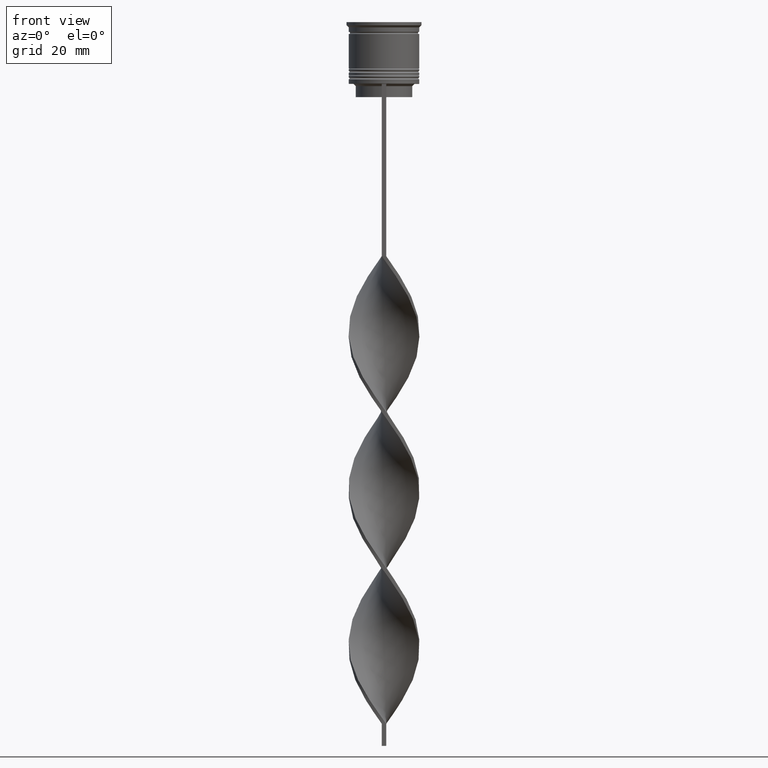
[diagram: clean part render]
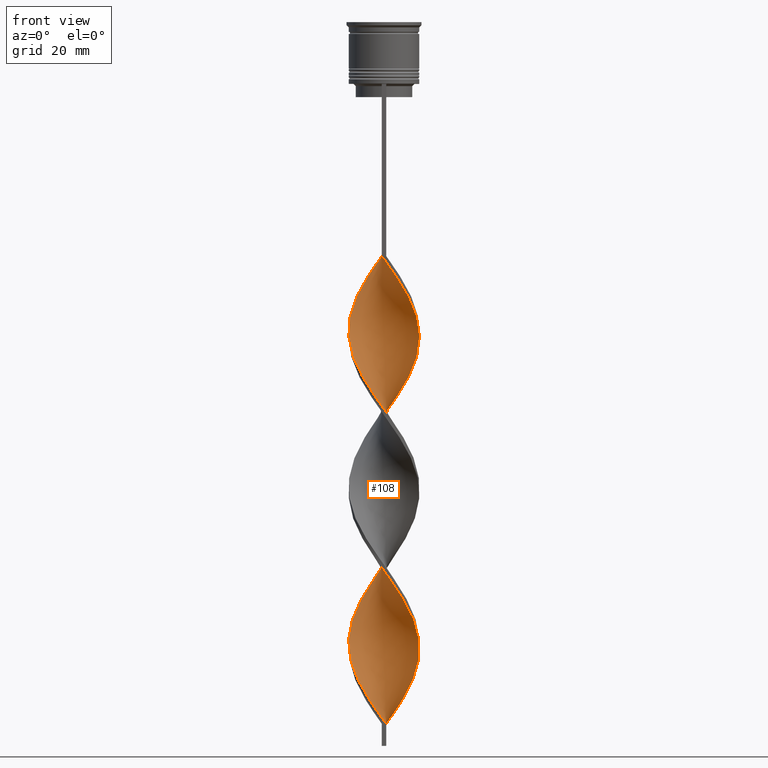
[diagram: same view with one face highlighted and labeled with its STEP entity id]
A machine part, front view. The second image highlights one B-rep face of the part: STEP entity #108.
In plain terms, the highlighted face is a freeform B-spline surface patch.
Its self-contained STEP definition (entity closure, byte-faithful):
#69 = CARTESIAN_POINT ( 'NONE',  ( 3.710665873427705375, 7.104995339602909077, -154.2888888888888914 ) ) ;
#93 = CARTESIAN_POINT ( 'NONE',  ( -7.178203230275506108, 3.566987298107779925, -64.77777777777778567 ) ) ;
#108 = ADVANCED_FACE ( 'NONE', ( #2754 ), #2329, .T. ) ;
#109 = CARTESIAN_POINT ( 'NONE',  ( -4.297773521152312703, 6.766028581145818954, -95.40000000000000568 ) ) ;
#111 = CARTESIAN_POINT ( 'NONE',  ( 7.762960627548698866, -1.996607696852002345, -102.4666666666666686 ) ) ;
#114 = CARTESIAN_POINT ( 'NONE',  ( 7.763755626116591202, -2.164223167868972286, -68.31111111111111711 ) ) ;
#126 = CARTESIAN_POINT ( 'NONE',  ( -6.212274820320100588, 5.134920145359100019, -98.93333333333332291 ) ) ;
#130 = CARTESIAN_POINT ( 'NONE',  ( 6.279723906998587069, 4.981472438132168001, -78.91111111111111143 ) ) ;
#144 = CARTESIAN_POINT ( 'NONE',  ( -2.963900771692546510, -7.495002038555971247, -120.1333333333333400 ) ) ;
#172 = CARTESIAN_POINT ( 'NONE',  ( 8.008439394580010529, -0.3389667584570969505, -104.8222222222222229 ) ) ;
#174 = CARTESIAN_POINT ( 'NONE',  ( 0.3408338821254121020, -8.052552117632842510, -54.17777777777777715 ) ) ;
#179 = CARTESIAN_POINT ( 'NONE',  ( 6.279723906998587069, 4.981472438132168001, -149.5777777777777828 ) ) ;
#184 = CARTESIAN_POINT ( 'NONE',  ( 7.763755626116591202, -2.164223167868972286, -138.9777777777777885 ) ) ;
#207 = CARTESIAN_POINT ( 'NONE',  ( 6.803297758105513182, 4.321446859207497937, -148.4000000000000057 ) ) ;
#210 = CARTESIAN_POINT ( 'NONE',  ( -3.710665873427700490, 7.104995339602903748, -57.71111111111110858 ) ) ;
#212 = VERTEX_POINT ( 'NONE', #2910 ) ;
#216 = CARTESIAN_POINT ( 'NONE',  ( -6.803297758105507853, 4.321446859207494384, -134.2666666666666231 ) ) ;
#224 = CARTESIAN_POINT ( 'NONE',  ( 2.007605570224933356, -7.805721184925815237, -127.2000000000000028 ) ) ;
#227 = CARTESIAN_POINT ( 'NONE',  ( -8.008439394580010529, 0.3389667584570925096, -69.48888888888889426 ) ) ;
#233 = CARTESIAN_POINT ( 'NONE',  ( 2.963900771692545177, 7.495002038555971247, -84.79999999999998295 ) ) ;
#240 = CARTESIAN_POINT ( 'NONE',  ( 7.144131640230924063, -3.731105258425344129, -136.6222222222222342 ) ) ;
#243 = CARTESIAN_POINT ( 'NONE',  ( 0.4999999999999989453, -7.999999999999996447, -88.33333333333332860 ) ) ;
#251 = CARTESIAN_POINT ( 'NONE',  ( -5.756150055891653849, 5.641498017056839842, -131.9111111111111256 ) ) ;
#260 = CARTESIAN_POINT ( 'NONE',  ( -4.457430975162866460, -6.714988640649845131, -117.7777777777777857 ) ) ;
#266 = CARTESIAN_POINT ( 'NONE',  ( -7.553108702445505251, 2.812527737008064577, -136.6222222222222342 ) ) ;
#274 = CARTESIAN_POINT ( 'NONE',  ( 0.4999999999999989453, -7.999999999999996447, -159.0000000000000000 ) ) ;
#277 = VERTEX_POINT ( 'NONE', #2894 ) ;
#311 = CARTESIAN_POINT ( 'NONE',  ( 0.5000000000000008882, 8.000000000000003553, -159.0000000000000000 ) ) ;
#320 = CARTESIAN_POINT ( 'NONE',  ( -7.903910931312363886, 1.333488653825370962, -104.8222222222222229 ) ) ;
#325 = CARTESIAN_POINT ( 'NONE',  ( 7.178203230275513214, 3.566987298107780813, -76.55555555555555713 ) ) ;
#340 = CARTESIAN_POINT ( 'NONE',  ( -7.178203230275514990, -3.566987298107776816, -111.8888888888888999 ) ) ;
#353 = CARTESIAN_POINT ( 'NONE',  ( 1.340833882125414211, 7.947447882367163707, -157.8222222222221944 ) ) ;
#354 = CARTESIAN_POINT ( 'NONE',  ( -4.297773521152310039, -6.766028581145813625, -81.26666666666666572 ) ) ;
#367 =( BOUNDED_CURVE ( )  B_SPLINE_CURVE ( 2, ( #1569, #3570, #2174, #675, #3607, #2122, #397, #1818, #726, #697, #2692, #2979, #1552, #114, #379, #1265, #2426, #3586, #3326, #983, #1865, #2727, #130, #2442, #1003, #1658, #2271, #2861, #3132, #3711, #1083, #1387, #462, #1355, #1916, #2547, #751, #1106, #1413, #2495, #3673, #478, #2214, #2824, #3434, #766, #516, #502, #824, #3690, #1985, #1034, #2191, #3380, #3147, #260, #1949, #1969, #1674, #2841, #1693, #531, #3636, #224, #1370, #3658, #3365, #3075, #1620, #2784, #1637, #240, #1068, #184, #1332, #3416, #1932, #1053, #3091, #2527, #2804, #207, #2513, #2229, #3397, #783, #3110, #2247, #806, #353, #311 ),
 .UNSPECIFIED., .F., .T. ) 
 B_SPLINE_CURVE_WITH_KNOTS ( ( 3, 2, 2, 2, 2, 2, 2, 2, 2, 2, 2, 2, 2, 2, 2, 2, 2, 2, 2, 2, 2, 2, 2, 2, 2, 2, 2, 2, 2, 2, 2, 2, 2, 2, 2, 2, 2, 2, 2, 2, 2, 2, 2, 2, 2, 3 ),
 ( 0.000000000000000000, 0.01666666666666666644, 0.03333333333333333287, 0.05000000000000000971, 0.06666666666666666574, 0.08333333333333332871, 0.1000000000000000194, 0.1166666666666666546, 0.1333333333333333315, 0.1499999999999999944, 0.1666666666666666574, 0.1833333333333333204, 0.2000000000000000389, 0.2166666666666666741, 0.2333333333333333093, 0.2500000000000000000, 0.2666666666666666630, 0.2833333333333333259, 0.2999999999999999889, 0.3166666666666666519, 0.3333333333333333148, 0.3499999999999999223, 0.3666666666666666408, 0.3833333333333333592, 0.4000000000000000777, 0.4166666666666666852, 0.4333333333333333481, 0.4500000000000000111, 0.4666666666666666186, 0.4833333333333333370, 0.5000000000000000000, 0.5166666666666667185, 0.5333333333333333259, 0.5500000000000000444, 0.5666666666666666519, 0.5833333333333333703, 0.5999999999999999778, 0.6166666666666666963, 0.6333333333333333037, 0.6500000000000000222, 0.6666666666666666297, 0.6833333333333332371, 0.6999999999999998446, 0.7166666666666666741, 0.7333333333333332815, 0.7500000000000000000 ),
 .UNSPECIFIED. ) 
 CURVE ( )  GEOMETRIC_REPRESENTATION_ITEM ( )  RATIONAL_B_SPLINE_CURVE ( ( 1.000000000000000000, 0.9945218953682732899, 1.000000000000000000, 0.9945218953682732899, 1.000000000000000000, 0.9945218953682732899, 1.000000000000000000, 0.9945218953682732899, 1.000000000000000000, 0.9945218953682732899, 1.000000000000000000, 0.9945218953682732899, 1.000000000000000000, 0.9945218953682732899, 1.000000000000000000, 0.9945218953682732899, 1.000000000000000000, 0.9945218953682732899, 1.000000000000000000, 0.9945218953682732899, 1.000000000000000000, 0.9945218953682732899, 1.000000000000000000, 0.9945218953682732899, 1.000000000000000000, 0.9945218953682732899, 1.000000000000000000, 0.9945218953682732899, 1.000000000000000000, 0.9945218953682732899, 1.000000000000000000, 0.9945218953682732899, 1.000000000000000000, 0.9945218953682732899, 1.000000000000000000, 0.9945218953682732899, 1.000000000000000000, 0.9945218953682732899, 1.000000000000000000, 0.9945218953682732899, 1.000000000000000000, 0.9945218953682732899, 1.000000000000000000, 0.9945218953682732899, 1.000000000000000000, 0.9945218953682732899, 1.000000000000000000, 0.9945218953682732899, 1.000000000000000000, 0.9945218953682732899, 1.000000000000000000, 0.9945218953682732899, 1.000000000000000000, 0.9945218953682732899, 1.000000000000000000, 0.9945218953682732899, 1.000000000000000000, 0.9945218953682732899, 1.000000000000000000, 0.9945218953682732899, 1.000000000000000000, 0.9945218953682732899, 1.000000000000000000, 0.9945218953682732899, 1.000000000000000000, 0.9945218953682732899, 1.000000000000000000, 0.9945218953682732899, 1.000000000000000000, 0.9945218953682732899, 1.000000000000000000, 0.9945218953682732899, 1.000000000000000000, 0.9945218953682732899, 1.000000000000000000, 0.9945218953682732899, 1.000000000000000000, 0.9945218953682732899, 1.000000000000000000, 0.9945218953682732899, 1.000000000000000000, 0.9945218953682732899, 1.000000000000000000, 0.9945218953682732899, 1.000000000000000000, 0.9945218953682732899, 1.000000000000000000, 0.9945218953682732899, 1.000000000000000000, 0.9945218953682732899, 1.000000000000000000 ) ) 
 REPRESENTATION_ITEM ( '' )  );
#375 = B_SPLINE_CURVE_WITH_KNOTS ( 'NONE', 3,
 ( #1350, #497, #3652, #1064 ),
 .UNSPECIFIED., .F., .F.,
 ( 4, 4 ),
 ( 0.000000000000000000, 1.000000000000000000 ),
 .UNSPECIFIED. ) ;
#376 = CARTESIAN_POINT ( 'NONE',  ( -2.797120415785101954, -7.511731982678703012, -83.62222222222222001 ) ) ;
#379 = CARTESIAN_POINT ( 'NONE',  ( 7.903910931312363886, -1.333488653825366521, -69.48888888888889426 ) ) ;
#387 = VERTEX_POINT ( 'NONE', #2036 ) ;
#394 = CARTESIAN_POINT ( 'NONE',  ( -7.453943633173752303, -2.947664213147154655, -74.20000000000000284 ) ) ;
#397 = CARTESIAN_POINT ( 'NONE',  ( 4.297773521152313592, -6.766028581145818954, -60.06666666666666288 ) ) ;
#449 = CARTESIAN_POINT ( 'NONE',  ( -7.903910931312356780, -1.333488653825362746, -71.84444444444444855 ) ) ;
#454 = CARTESIAN_POINT ( 'NONE',  ( -5.610593300639724390, -5.724617263609558471, -78.91111111111111143 ) ) ;
#462 = CARTESIAN_POINT ( 'NONE',  ( -1.174219726175170564, 7.929136651279328873, -90.68888888888888289 ) ) ;
#464 = CARTESIAN_POINT ( 'NONE',  ( -7.144131640230919622, -3.731105258425339244, -75.37777777777777999 ) ) ;
#472 = CARTESIAN_POINT ( 'NONE',  ( 7.903910931312363886, -1.333488653825366521, -140.1555555555555657 ) ) ;
#478 = CARTESIAN_POINT ( 'NONE',  ( -7.144131640230921398, 3.731105258425349014, -101.2888888888888914 ) ) ;
#482 = CARTESIAN_POINT ( 'NONE',  ( 6.678203230275510549, 4.433012701892212526, -111.8888888888888999 ) ) ;
#484 = CARTESIAN_POINT ( 'NONE',  ( 4.297773521152313592, -6.766028581145818954, -60.06666666666666288 ) ) ;
#494 = CARTESIAN_POINT ( 'NONE',  ( -3.710665873427700490, 7.104995339602903748, -128.3777777777777942 ) ) ;
#497 = CARTESIAN_POINT ( 'NONE',  ( 0.5000000000000002220, 2.666666666666670515, -159.0000000000000000 ) ) ;
#502 = CARTESIAN_POINT ( 'NONE',  ( -7.972812552651899587, -1.180687656695935006, -108.3555555555555543 ) ) ;
#505 = CARTESIAN_POINT ( 'NONE',  ( 3.586635261345272330, 7.217742780431597893, -117.7777777777777857 ) ) ;
#516 = CARTESIAN_POINT ( 'NONE',  ( -8.008439394580017634, -0.3389667584570877357, -107.1777777777777771 ) ) ;
#519 = CARTESIAN_POINT ( 'NONE',  ( -0.4999999999999998890, 7.999999999999996447, -123.6666666666666714 ) ) ;
#525 = CARTESIAN_POINT ( 'NONE',  ( -2.797120415785101954, -7.511731982678703012, -154.2888888888888914 ) ) ;
#531 = CARTESIAN_POINT ( 'NONE',  ( 0.3408338821254121020, -8.052552117632842510, -124.8444444444444343 ) ) ;
#536 = CARTESIAN_POINT ( 'NONE',  ( -0.3408338821254136564, -8.052552117632835404, -157.8222222222221944 ) ) ;
#545 = CARTESIAN_POINT ( 'NONE',  ( -0.3408338821254136564, -8.052552117632835404, -157.8222222222221660 ) ) ;
#562 = CARTESIAN_POINT ( 'NONE',  ( -7.453943633173752303, -2.947664213147154655, -144.8666666666666742 ) ) ;
#571 = CARTESIAN_POINT ( 'NONE',  ( -1.174219726175174561, -7.929136651279319992, -156.6444444444444457 ) ) ;
#582 = CARTESIAN_POINT ( 'NONE',  ( -8.008439394580017634, -0.3389667584570877357, -107.1777777777777771 ) ) ;
#597 = CARTESIAN_POINT ( 'NONE',  ( -2.152367326908976697, 7.721224960461563036, -126.0222222222222257 ) ) ;
#599 = CARTESIAN_POINT ( 'NONE',  ( 7.453943633173757632, -2.947664213147156875, -67.13333333333333997 ) ) ;
#618 = CARTESIAN_POINT ( 'NONE',  ( -6.212274820320096147, -5.134920145359094690, -148.4000000000000057 ) ) ;
#621 = CARTESIAN_POINT ( 'NONE',  ( -7.972812552651898699, -1.180687656695935006, -108.3555555555555543 ) ) ;
#631 = CARTESIAN_POINT ( 'NONE',  ( 6.678203230275512325, -4.433012701892221408, -135.4444444444444571 ) ) ;
#637 = CARTESIAN_POINT ( 'NONE',  ( 6.279723906998579075, -4.981472438132168001, -97.75555555555555998 ) ) ;
#654 = CARTESIAN_POINT ( 'NONE',  ( -2.007605570224932023, -7.805721184925808132, -84.79999999999998295 ) ) ;
#673 = CARTESIAN_POINT ( 'NONE',  ( -0.3408338821254136564, -8.052552117632835404, -87.15555555555553724 ) ) ;
#675 = CARTESIAN_POINT ( 'NONE',  ( 2.007605570224933356, -7.805721184925815237, -56.53333333333332433 ) ) ;
#697 = CARTESIAN_POINT ( 'NONE',  ( 6.212274820320101476, -5.134920145359100019, -63.60000000000000142 ) ) ;
#726 = CARTESIAN_POINT ( 'NONE',  ( 5.610593300639727055, -5.724617263609565576, -62.42222222222221717 ) ) ;
#740 = CARTESIAN_POINT ( 'NONE',  ( -2.152367326908982026, -7.721224960461567477, -121.3111111111111171 ) ) ;
#742 = CARTESIAN_POINT ( 'NONE',  ( 8.044066236508134793, -0.5027541397817586466, -141.3333333333333428 ) ) ;
#747 =( BOUNDED_CURVE ( )  B_SPLINE_CURVE ( 2, ( #3384, #1391, #1086, #827, #210, #2552, #1337, #3078, #3093, #769, #3369, #2516, #1358, #3716, #227, #2499, #449, #3678, #3438, #464, #2847, #2231, #3116, #809, #1038, #755, #2826, #2532, #3693, #2198, #243, #3661, #1110, #2274, #3063, #2218, #1606, #2252, #1320, #2769, #785, #1954, #1623, #2786, #172, #1374, #2808, #1920, #2479, #1934, #482, #3419, #3639, #1642, #1072, #505, #3399, #1972, #1661, #3134, #519, #2586, #597, #3477, #885, #1473, #2061, #3213, #3509, #2570, #869, #266, #903, #2865, #3232, #3528, #845, #2028, #562, #3194, #2012, #618, #2888, #2630, #2605, #1781, #2044, #2945, #3151, #536, #1721 ),
 .UNSPECIFIED., .F., .T. ) 
 B_SPLINE_CURVE_WITH_KNOTS ( ( 3, 2, 2, 2, 2, 2, 2, 2, 2, 2, 2, 2, 2, 2, 2, 2, 2, 2, 2, 2, 2, 2, 2, 2, 2, 2, 2, 2, 2, 2, 2, 2, 2, 2, 2, 2, 2, 2, 2, 2, 2, 2, 2, 2, 2, 3 ),
 ( 0.000000000000000000, 0.01666666666666666644, 0.03333333333333333287, 0.05000000000000000971, 0.06666666666666666574, 0.08333333333333332871, 0.1000000000000000194, 0.1166666666666666546, 0.1333333333333333315, 0.1499999999999999944, 0.1666666666666666574, 0.1833333333333333204, 0.2000000000000000389, 0.2166666666666666741, 0.2333333333333333093, 0.2500000000000000000, 0.2666666666666666630, 0.2833333333333333259, 0.2999999999999999889, 0.3166666666666666519, 0.3333333333333333148, 0.3499999999999999223, 0.3666666666666666408, 0.3833333333333333592, 0.4000000000000000777, 0.4166666666666666852, 0.4333333333333333481, 0.4500000000000000111, 0.4666666666666666186, 0.4833333333333333370, 0.5000000000000000000, 0.5166666666666667185, 0.5333333333333333259, 0.5500000000000000444, 0.5666666666666666519, 0.5833333333333333703, 0.5999999999999999778, 0.6166666666666666963, 0.6333333333333333037, 0.6500000000000000222, 0.6666666666666666297, 0.6833333333333332371, 0.6999999999999998446, 0.7166666666666666741, 0.7333333333333332815, 0.7500000000000000000 ),
 .UNSPECIFIED. ) 
 CURVE ( )  GEOMETRIC_REPRESENTATION_ITEM ( )  RATIONAL_B_SPLINE_CURVE ( ( 1.000000000000000000, 0.9945218953682732899, 1.000000000000000000, 0.9945218953682732899, 1.000000000000000000, 0.9945218953682732899, 1.000000000000000000, 0.9945218953682732899, 1.000000000000000000, 0.9945218953682732899, 1.000000000000000000, 0.9945218953682732899, 1.000000000000000000, 0.9945218953682732899, 1.000000000000000000, 0.9945218953682732899, 1.000000000000000000, 0.9945218953682732899, 1.000000000000000000, 0.9945218953682732899, 1.000000000000000000, 0.9945218953682732899, 1.000000000000000000, 0.9945218953682732899, 1.000000000000000000, 0.9945218953682732899, 1.000000000000000000, 0.9945218953682732899, 1.000000000000000000, 0.9945218953682732899, 1.000000000000000000, 0.9945218953682732899, 1.000000000000000000, 0.9945218953682732899, 1.000000000000000000, 0.9945218953682732899, 1.000000000000000000, 0.9945218953682732899, 1.000000000000000000, 0.9945218953682732899, 1.000000000000000000, 0.9945218953682732899, 1.000000000000000000, 0.9945218953682732899, 1.000000000000000000, 0.9945218953682732899, 1.000000000000000000, 0.9945218953682732899, 1.000000000000000000, 0.9945218953682732899, 1.000000000000000000, 0.9945218953682732899, 1.000000000000000000, 0.9945218953682732899, 1.000000000000000000, 0.9945218953682732899, 1.000000000000000000, 0.9945218953682732899, 1.000000000000000000, 0.9945218953682732899, 1.000000000000000000, 0.9945218953682732899, 1.000000000000000000, 0.9945218953682732899, 1.000000000000000000, 0.9945218953682732899, 1.000000000000000000, 0.9945218953682732899, 1.000000000000000000, 0.9945218953682732899, 1.000000000000000000, 0.9945218953682732899, 1.000000000000000000, 0.9945218953682732899, 1.000000000000000000, 0.9945218953682732899, 1.000000000000000000, 0.9945218953682732899, 1.000000000000000000, 0.9945218953682732899, 1.000000000000000000, 0.9945218953682732899, 1.000000000000000000, 0.9945218953682732899, 1.000000000000000000, 0.9945218953682732899, 1.000000000000000000, 0.9945218953682732899, 1.000000000000000000, 0.9945218953682732899, 1.000000000000000000 ) ) 
 REPRESENTATION_ITEM ( '' )  );
#751 = CARTESIAN_POINT ( 'NONE',  ( -4.297773521152312703, 6.766028581145818954, -95.40000000000000568 ) ) ;
#755 = CARTESIAN_POINT ( 'NONE',  ( -3.586635261345271442, -7.217742780431598781, -82.44444444444444287 ) ) ;
#760 = CARTESIAN_POINT ( 'NONE',  ( -1.340833882125411103, 7.947447882367156602, -54.17777777777777715 ) ) ;
#766 = CARTESIAN_POINT ( 'NONE',  ( -8.044066236508134793, 0.5027541397817596458, -106.0000000000000000 ) ) ;
#769 = CARTESIAN_POINT ( 'NONE',  ( -6.803297758105507853, 4.321446859207494384, -63.60000000000000142 ) ) ;
#771 = CARTESIAN_POINT ( 'NONE',  ( 2.797120415785102399, -7.511731982678711006, -57.71111111111110858 ) ) ;
#777 = CARTESIAN_POINT ( 'NONE',  ( -7.553108702445506140, 2.812527737008064133, -136.6222222222222342 ) ) ;
#783 = CARTESIAN_POINT ( 'NONE',  ( 4.457430975162866460, 6.714988640649846019, -153.1111111111111143 ) ) ;
#785 = CARTESIAN_POINT ( 'NONE',  ( 7.178203230275505220, -3.566987298107782589, -100.1111111111111143 ) ) ;
#796 = CARTESIAN_POINT ( 'NONE',  ( -7.972812552651889817, 1.180687656695941001, -138.9777777777777885 ) ) ;
#806 = CARTESIAN_POINT ( 'NONE',  ( 2.152367326908981138, 7.721224960461567477, -156.6444444444444457 ) ) ;
#809 = CARTESIAN_POINT ( 'NONE',  ( -5.008911780959351745, -6.314314381860024028, -80.08888888888888857 ) ) ;
#815 = CARTESIAN_POINT ( 'NONE',  ( 2.152367326908981138, 7.721224960461567477, -85.97777777777777430 ) ) ;
#824 = CARTESIAN_POINT ( 'NONE',  ( -7.762960627548706860, -1.996607696852001901, -109.5333333333333456 ) ) ;
#827 = CARTESIAN_POINT ( 'NONE',  ( -2.963900771692542069, 7.495002038555965029, -56.53333333333332433 ) ) ;
#834 = CARTESIAN_POINT ( 'NONE',  ( 6.212274820320097035, 5.134920145359093802, -113.0666666666666487 ) ) ;
#845 = CARTESIAN_POINT ( 'NONE',  ( -7.903910931312356780, -1.333488653825362746, -142.5111111111111200 ) ) ;
#847 = CARTESIAN_POINT ( 'NONE',  ( 7.453943633173757632, -2.947664213147156875, -137.8000000000000114 ) ) ;
#869 = CARTESIAN_POINT ( 'NONE',  ( -7.178203230275506108, 3.566987298107779925, -135.4444444444444571 ) ) ;
#876 = CARTESIAN_POINT ( 'NONE',  ( 0.5000000000000008882, 8.000000000000003553, -88.33333333333332860 ) ) ;
#885 = CARTESIAN_POINT ( 'NONE',  ( -3.710665873427700490, 7.104995339602903748, -128.3777777777777942 ) ) ;
#890 = CARTESIAN_POINT ( 'NONE',  ( 6.803297758105512294, 4.321446859207497937, -77.73333333333333428 ) ) ;
#903 = CARTESIAN_POINT ( 'NONE',  ( -7.762960627548698866, 1.996607696852001457, -137.8000000000000114 ) ) ;
#920 = CARTESIAN_POINT ( 'NONE',  ( 5.756150055891652073, -5.641498017056840730, -96.57777777777775441 ) ) ;
#939 = CARTESIAN_POINT ( 'NONE',  ( -7.144131640230918734, -3.731105258425338800, -75.37777777777777999 ) ) ;
#956 = CARTESIAN_POINT ( 'NONE',  ( 6.212274820320101476, -5.134920145359099131, -63.60000000000000853 ) ) ;
#959 = CARTESIAN_POINT ( 'NONE',  ( 2.152367326908974476, -7.721224960461563036, -90.68888888888888289 ) ) ;
#983 = CARTESIAN_POINT ( 'NONE',  ( 7.553108702445512357, 2.812527737008065021, -75.37777777777777999 ) ) ;
#1003 = CARTESIAN_POINT ( 'NONE',  ( 5.106790515527261931, 6.178243328853344707, -81.26666666666666572 ) ) ;
#1026 = CARTESIAN_POINT ( 'NONE',  ( 8.044066236508127687, 0.5027541397817566482, -106.0000000000000000 ) ) ;
#1034 = CARTESIAN_POINT ( 'NONE',  ( -6.803297758105514070, -4.321446859207497049, -113.0666666666666629 ) ) ;
#1038 = CARTESIAN_POINT ( 'NONE',  ( -4.297773521152310039, -6.766028581145813625, -81.26666666666666572 ) ) ;
#1047 = CARTESIAN_POINT ( 'NONE',  ( -2.963900771692542513, 7.495002038555964141, -56.53333333333331723 ) ) ;
#1053 = CARTESIAN_POINT ( 'NONE',  ( 7.972812552651897811, 1.180687656695939447, -143.6888888888888971 ) ) ;
#1058 = CARTESIAN_POINT ( 'NONE',  ( 2.007605570224933356, -7.805721184925815237, -56.53333333333331723 ) ) ;
#1064 = CARTESIAN_POINT ( 'NONE',  ( 0.4999999999999989453, -7.999999999999996447, -159.0000000000000000 ) ) ;
#1068 = CARTESIAN_POINT ( 'NONE',  ( 7.453943633173757632, -2.947664213147156875, -137.8000000000000114 ) ) ;
#1072 = CARTESIAN_POINT ( 'NONE',  ( 4.297773521152310927, 6.766028581145813625, -116.6000000000000085 ) ) ;
#1077 = CARTESIAN_POINT ( 'NONE',  ( 1.174219726175175671, 7.929136651279319992, -121.3111111111111171 ) ) ;
#1083 = CARTESIAN_POINT ( 'NONE',  ( 0.5000000000000008882, 8.000000000000003553, -88.33333333333332860 ) ) ;
#1086 = CARTESIAN_POINT ( 'NONE',  ( -2.152367326908976697, 7.721224960461563036, -55.35555555555555429 ) ) ;
#1098 = CARTESIAN_POINT ( 'NONE',  ( -6.212274820320096147, -5.134920145359094690, -148.4000000000000057 ) ) ;
#1106 = CARTESIAN_POINT ( 'NONE',  ( -5.008911780959351745, 6.314314381860032022, -96.57777777777776862 ) ) ;
#1110 = CARTESIAN_POINT ( 'NONE',  ( 2.152367326908974476, -7.721224960461563036, -90.68888888888888289 ) ) ;
#1134 = CARTESIAN_POINT ( 'NONE',  ( 0.3408338821254181528, 8.052552117632835404, -122.4888888888888800 ) ) ;
#1154 = CARTESIAN_POINT ( 'NONE',  ( 3.710665873427705375, 7.104995339602909077, -83.62222222222222001 ) ) ;
#1159 = VECTOR ( 'NONE', #2116, 1000.000000000000000 ) ;
#1199 = CARTESIAN_POINT ( 'NONE',  ( -6.678203230275506996, -4.433012701892216079, -76.55555555555555713 ) ) ;
#1203 = ORIENTED_EDGE ( 'NONE', *, *, #2010, .F. ) ;
#1222 = CARTESIAN_POINT ( 'NONE',  ( 0.5000000000000008882, 8.000000000000003553, -159.0000000000000000 ) ) ;
#1245 = CARTESIAN_POINT ( 'NONE',  ( 2.963900771692545177, 7.495002038555971247, -155.4666666666666686 ) ) ;
#1254 = CARTESIAN_POINT ( 'NONE',  ( 7.553108702445513245, 2.812527737008064577, -75.37777777777777999 ) ) ;
#1261 = CARTESIAN_POINT ( 'NONE',  ( 7.972812552651889817, -1.180687656695943666, -103.6444444444444457 ) ) ;
#1265 = CARTESIAN_POINT ( 'NONE',  ( 8.044066236508134793, -0.5027541397817586466, -70.66666666666667140 ) ) ;
#1268 = CARTESIAN_POINT ( 'NONE',  ( 7.144131640230924063, -3.731105258425344129, -136.6222222222222342 ) ) ;
#1271 = CARTESIAN_POINT ( 'NONE',  ( 5.008911780959353521, -6.314314381860030245, -61.24444444444443292 ) ) ;
#1281 = CARTESIAN_POINT ( 'NONE',  ( -6.678203230275511437, 4.433012701892224072, -100.1111111111111143 ) ) ;
#1306 = EDGE_LOOP ( 'NONE', ( #2756, #3463, #2710, #1203 ) ) ;
#1320 = CARTESIAN_POINT ( 'NONE',  ( 6.279723906998579075, -4.981472438132168001, -97.75555555555555998 ) ) ;
#1327 = CARTESIAN_POINT ( 'NONE',  ( 8.008439394580017634, 0.3389667584570904557, -142.5111111111111200 ) ) ;
#1332 = CARTESIAN_POINT ( 'NONE',  ( 7.903910931312363886, -1.333488653825366521, -140.1555555555555657 ) ) ;
#1337 = CARTESIAN_POINT ( 'NONE',  ( -5.106790515527257490, 6.178243328853340266, -60.06666666666666288 ) ) ;
#1346 = CARTESIAN_POINT ( 'NONE',  ( 0.3408338821254121020, -8.052552117632842510, -124.8444444444444343 ) ) ;
#1350 = CARTESIAN_POINT ( 'NONE',  ( 0.5000000000000008882, 8.000000000000003553, -159.0000000000000000 ) ) ;
#1355 = CARTESIAN_POINT ( 'NONE',  ( -2.007605570224932467, 7.805721184925816125, -91.86666666666666003 ) ) ;
#1358 = CARTESIAN_POINT ( 'NONE',  ( -7.762960627548698866, 1.996607696852001457, -67.13333333333333997 ) ) ;
#1364 = CARTESIAN_POINT ( 'NONE',  ( -7.453943633173752303, -2.947664213147154655, -144.8666666666666742 ) ) ;
#1370 = CARTESIAN_POINT ( 'NONE',  ( 2.797120415785102399, -7.511731982678711006, -128.3777777777777942 ) ) ;
#1374 = CARTESIAN_POINT ( 'NONE',  ( 8.044066236508127687, 0.5027541397817566482, -106.0000000000000000 ) ) ;
#1380 = CARTESIAN_POINT ( 'NONE',  ( -5.106790515527257490, 6.178243328853340266, -130.7333333333333485 ) ) ;
#1384 = VERTEX_POINT ( 'NONE', #3487 ) ;
#1387 = CARTESIAN_POINT ( 'NONE',  ( -0.3408338821254087714, 8.052552117632844286, -89.51111111111110574 ) ) ;
#1391 = CARTESIAN_POINT ( 'NONE',  ( -1.340833882125411103, 7.947447882367156602, -54.17777777777777715 ) ) ;
#1413 = CARTESIAN_POINT ( 'NONE',  ( -5.610593300639726166, 5.724617263609566464, -97.75555555555555998 ) ) ;
#1418 = CARTESIAN_POINT ( 'NONE',  ( -7.763755626116591202, 2.164223167868974951, -103.6444444444444457 ) ) ;
#1441 = CARTESIAN_POINT ( 'NONE',  ( 5.106790515527261931, 6.178243328853344707, -81.26666666666666572 ) ) ;
#1459 = CARTESIAN_POINT ( 'NONE',  ( -2.797120415785099734, 7.511731982678712782, -93.04444444444443718 ) ) ;
#1473 = CARTESIAN_POINT ( 'NONE',  ( -4.457430975162859355, 6.714988640649843354, -129.5555555555555429 ) ) ;
#1490 = CARTESIAN_POINT ( 'NONE',  ( -6.803297758105513182, -4.321446859207497049, -113.0666666666666487 ) ) ;
#1502 = CARTESIAN_POINT ( 'NONE',  ( -2.152367326908976697, 7.721224960461563036, -55.35555555555555429 ) ) ;
#1526 = CARTESIAN_POINT ( 'NONE',  ( -7.762960627548698866, 1.996607696852001457, -67.13333333333333997 ) ) ;
#1545 = CARTESIAN_POINT ( 'NONE',  ( 2.007605570224933356, -7.805721184925815237, -127.2000000000000171 ) ) ;
#1549 = CARTESIAN_POINT ( 'NONE',  ( -6.279723906998579963, 4.981472438132166225, -62.42222222222221717 ) ) ;
#1552 = CARTESIAN_POINT ( 'NONE',  ( 7.453943633173757632, -2.947664213147156875, -67.13333333333333997 ) ) ;
#1566 = CARTESIAN_POINT ( 'NONE',  ( -5.610593300639726166, 5.724617263609566464, -97.75555555555555998 ) ) ;
#1569 = CARTESIAN_POINT ( 'NONE',  ( -0.4999999999999998890, -8.000000000000003553, -53.00000000000000000 ) ) ;
#1582 = LINE ( 'NONE', #2742, #1159 ) ;
#1606 = CARTESIAN_POINT ( 'NONE',  ( 5.106790515527256602, -6.178243328853340266, -95.40000000000000568 ) ) ;
#1614 = CARTESIAN_POINT ( 'NONE',  ( -1.340833882125418652, -7.947447882367162819, -122.4888888888888800 ) ) ;
#1615 = CARTESIAN_POINT ( 'NONE',  ( 7.903910931312356780, 1.333488653825360082, -107.1777777777777771 ) ) ;
#1620 = CARTESIAN_POINT ( 'NONE',  ( 5.610593300639727055, -5.724617263609565576, -133.0888888888889028 ) ) ;
#1623 = CARTESIAN_POINT ( 'NONE',  ( 7.762960627548698866, -1.996607696852002345, -102.4666666666666686 ) ) ;
#1629 = CARTESIAN_POINT ( 'NONE',  ( -7.903910931312356780, -1.333488653825362746, -71.84444444444444855 ) ) ;
#1637 = CARTESIAN_POINT ( 'NONE',  ( 6.678203230275512325, -4.433012701892221408, -135.4444444444444571 ) ) ;
#1642 = CARTESIAN_POINT ( 'NONE',  ( 5.008911780959355298, 6.314314381860021363, -115.4222222222222314 ) ) ;
#1650 = CARTESIAN_POINT ( 'NONE',  ( 7.453943633173752303, 2.947664213147153767, -109.5333333333333456 ) ) ;
#1658 = CARTESIAN_POINT ( 'NONE',  ( 4.457430975162866460, 6.714988640649846019, -82.44444444444444287 ) ) ;
#1661 = CARTESIAN_POINT ( 'NONE',  ( 1.174219726175175671, 7.929136651279319992, -121.3111111111111171 ) ) ;
#1668 = CARTESIAN_POINT ( 'NONE',  ( -6.279723906998579963, 4.981472438132166225, -133.0888888888889028 ) ) ;
#1674 = CARTESIAN_POINT ( 'NONE',  ( -2.152367326908982026, -7.721224960461567477, -121.3111111111111171 ) ) ;
#1684 = CARTESIAN_POINT ( 'NONE',  ( -2.963900771692542513, 7.495002038555964141, -127.2000000000000171 ) ) ;
#1693 = CARTESIAN_POINT ( 'NONE',  ( -0.4999999999999998890, -8.000000000000003553, -123.6666666666666714 ) ) ;
#1721 = CARTESIAN_POINT ( 'NONE',  ( 0.4999999999999989453, -7.999999999999996447, -159.0000000000000000 ) ) ;
#1728 = CARTESIAN_POINT ( 'NONE',  ( -2.152367326908976697, 7.721224960461563036, -126.0222222222222257 ) ) ;
#1739 = CARTESIAN_POINT ( 'NONE',  ( -7.762960627548706860, -1.996607696852001901, -109.5333333333333456 ) ) ;
#1744 = CARTESIAN_POINT ( 'NONE',  ( 1.340833882125414211, 7.947447882367162819, -87.15555555555553724 ) ) ;
#1781 = CARTESIAN_POINT ( 'NONE',  ( -3.586635261345271442, -7.217742780431598781, -153.1111111111111143 ) ) ;
#1784 = CARTESIAN_POINT ( 'NONE',  ( -7.553108702445514133, -2.812527737008061912, -110.7111111111110944 ) ) ;
#1797 = CARTESIAN_POINT ( 'NONE',  ( 7.553108702445513245, 2.812527737008064577, -146.0444444444443945 ) ) ;
#1811 = CARTESIAN_POINT ( 'NONE',  ( -3.710665873427708927, -7.104995339602907301, -118.9555555555555628 ) ) ;
#1815 = CARTESIAN_POINT ( 'NONE',  ( -4.457430975162859355, 6.714988640649843354, -58.88888888888889284 ) ) ;
#1818 = CARTESIAN_POINT ( 'NONE',  ( 5.008911780959354410, -6.314314381860031133, -61.24444444444443292 ) ) ;
#1840 = CARTESIAN_POINT ( 'NONE',  ( -8.008439394580010529, 0.3389667584570925096, -69.48888888888889426 ) ) ;
#1850 = CARTESIAN_POINT ( 'NONE',  ( 6.279723906998587069, 4.981472438132168001, -78.91111111111111143 ) ) ;
#1856 = CARTESIAN_POINT ( 'NONE',  ( 5.008911780959353521, -6.314314381860030245, -131.9111111111111256 ) ) ;
#1861 = CARTESIAN_POINT ( 'NONE',  ( -5.008911780959350857, 6.314314381860031133, -96.57777777777775441 ) ) ;
#1865 = CARTESIAN_POINT ( 'NONE',  ( 7.178203230275513214, 3.566987298107780813, -76.55555555555555713 ) ) ;
#1909 = CARTESIAN_POINT ( 'NONE',  ( -6.803297758105507853, 4.321446859207494384, -63.60000000000000853 ) ) ;
#1916 = CARTESIAN_POINT ( 'NONE',  ( -2.797120415785099734, 7.511731982678712782, -93.04444444444443718 ) ) ;
#1920 = CARTESIAN_POINT ( 'NONE',  ( 7.763755626116586761, 2.164223167868963404, -108.3555555555555543 ) ) ;
#1925 = CARTESIAN_POINT ( 'NONE',  ( -7.553108702445506140, 2.812527737008064133, -65.95555555555556282 ) ) ;
#1932 = CARTESIAN_POINT ( 'NONE',  ( 8.008439394580017634, 0.3389667584570904557, -142.5111111111111200 ) ) ;
#1934 = CARTESIAN_POINT ( 'NONE',  ( 7.144131640230920510, 3.731105258425336579, -110.7111111111111086 ) ) ;
#1936 = CARTESIAN_POINT ( 'NONE',  ( 3.586635261345271442, -7.217742780431606775, -58.88888888888889284 ) ) ;
#1942 = CARTESIAN_POINT ( 'NONE',  ( 7.763755626116586761, 2.164223167868963404, -108.3555555555555543 ) ) ;
#1949 = CARTESIAN_POINT ( 'NONE',  ( -3.710665873427708927, -7.104995339602907301, -118.9555555555555628 ) ) ;
#1954 = CARTESIAN_POINT ( 'NONE',  ( 7.553108702445503475, -2.812527737008069018, -101.2888888888888914 ) ) ;
#1963 = CARTESIAN_POINT ( 'NONE',  ( -4.297773521152310039, -6.766028581145813625, -151.9333333333333371 ) ) ;
#1969 = CARTESIAN_POINT ( 'NONE',  ( -2.963900771692546510, -7.495002038555971247, -120.1333333333333400 ) ) ;
#1972 = CARTESIAN_POINT ( 'NONE',  ( 2.007605570224933356, 7.805721184925808132, -120.1333333333333400 ) ) ;
#1979 = CARTESIAN_POINT ( 'NONE',  ( -4.457430975162859355, 6.714988640649843354, -129.5555555555555429 ) ) ;
#1985 = CARTESIAN_POINT ( 'NONE',  ( -7.178203230275514990, -3.566987298107776816, -111.8888888888888999 ) ) ;
#1997 = CARTESIAN_POINT ( 'NONE',  ( -0.4999999999999998890, 7.999999999999996447, -123.6666666666666714 ) ) ;
#2010 = EDGE_CURVE ( 'NONE', #212, #1384, #367, .T. ) ;
#2012 = CARTESIAN_POINT ( 'NONE',  ( -6.678203230275506996, -4.433012701892216079, -147.2222222222222285 ) ) ;
#2020 = CARTESIAN_POINT ( 'NONE',  ( 2.797120415785105951, 7.511731982678701236, -118.9555555555555628 ) ) ;
#2028 = CARTESIAN_POINT ( 'NONE',  ( -7.763755626116585873, -2.164223167868968734, -143.6888888888888971 ) ) ;
#2034 = CARTESIAN_POINT ( 'NONE',  ( -0.3408338821254087714, 8.052552117632844286, -89.51111111111111995 ) ) ;
#2036 = CARTESIAN_POINT ( 'NONE',  ( 0.4999999999999989453, -7.999999999999996447, -159.0000000000000000 ) ) ;
#2044 = CARTESIAN_POINT ( 'NONE',  ( -2.797120415785101954, -7.511731982678703012, -154.2888888888888914 ) ) ;
#2046 = CARTESIAN_POINT ( 'NONE',  ( 6.678203230275512325, -4.433012701892221408, -64.77777777777778567 ) ) ;
#2061 = CARTESIAN_POINT ( 'NONE',  ( -5.106790515527257490, 6.178243328853340266, -130.7333333333333485 ) ) ;
#2084 = CARTESIAN_POINT ( 'NONE',  ( 5.756150055891660955, 5.641498017056843395, -150.7555555555555600 ) ) ;
#2099 = CARTESIAN_POINT ( 'NONE',  ( -7.972812552651889817, 1.180687656695941001, -68.31111111111111711 ) ) ;
#2116 = DIRECTION ( 'NONE',  ( 0.000000000000000000, 1.000000000000000000, 0.000000000000000000 ) ) ;
#2117 = CARTESIAN_POINT ( 'NONE',  ( 8.008439394580017634, 0.3389667584570904557, -71.84444444444444855 ) ) ;
#2118 = CARTESIAN_POINT ( 'NONE',  ( -3.586635261345269665, 7.217742780431608551, -94.22222222222221433 ) ) ;
#2119 = CARTESIAN_POINT ( 'NONE',  ( 3.710665873427697381, -7.104995339602904636, -93.04444444444443718 ) ) ;
#2122 = CARTESIAN_POINT ( 'NONE',  ( 3.586635261345271886, -7.217742780431606775, -58.88888888888888573 ) ) ;
#2174 = CARTESIAN_POINT ( 'NONE',  ( 1.174219726175172562, -7.929136651279328873, -55.35555555555555429 ) ) ;
#2182 = CARTESIAN_POINT ( 'NONE',  ( 6.803297758105506965, -4.321446859207495272, -98.93333333333332291 ) ) ;
#2191 = CARTESIAN_POINT ( 'NONE',  ( -6.279723906998587957, -4.981472438132167113, -114.2444444444444542 ) ) ;
#2198 = CARTESIAN_POINT ( 'NONE',  ( -0.3408338821254136564, -8.052552117632835404, -87.15555555555553724 ) ) ;
#2205 = CARTESIAN_POINT ( 'NONE',  ( -0.4999999999999998890, -8.000000000000003553, -123.6666666666666714 ) ) ;
#2206 = CARTESIAN_POINT ( 'NONE',  ( 2.963900771692541625, -7.495002038555965029, -91.86666666666666003 ) ) ;
#2214 = CARTESIAN_POINT ( 'NONE',  ( -7.453943633173757632, 2.947664213147157763, -102.4666666666666686 ) ) ;
#2218 = CARTESIAN_POINT ( 'NONE',  ( 4.457430975162857578, -6.714988640649844243, -94.22222222222221433 ) ) ;
#2223 = CARTESIAN_POINT ( 'NONE',  ( -1.340833882125411103, 7.947447882367156602, -124.8444444444444343 ) ) ;
#2229 = CARTESIAN_POINT ( 'NONE',  ( 5.756150055891660067, 5.641498017056842507, -150.7555555555555600 ) ) ;
#2231 = CARTESIAN_POINT ( 'NONE',  ( -6.212274820320096147, -5.134920145359094690, -77.73333333333333428 ) ) ;
#2239 = CARTESIAN_POINT ( 'NONE',  ( 4.297773521152310927, 6.766028581145813625, -116.6000000000000085 ) ) ;
#2247 = CARTESIAN_POINT ( 'NONE',  ( 2.963900771692545177, 7.495002038555971247, -155.4666666666666686 ) ) ;
#2252 = CARTESIAN_POINT ( 'NONE',  ( 5.756150055891652073, -5.641498017056840730, -96.57777777777776862 ) ) ;
#2271 = CARTESIAN_POINT ( 'NONE',  ( 3.710665873427705375, 7.104995339602909077, -83.62222222222222001 ) ) ;
#2274 = CARTESIAN_POINT ( 'NONE',  ( 2.963900771692541181, -7.495002038555965029, -91.86666666666666003 ) ) ;
#2279 = CARTESIAN_POINT ( 'NONE',  ( 5.756150055891660955, 5.641498017056843395, -80.08888888888890278 ) ) ;
#2298 = CARTESIAN_POINT ( 'NONE',  ( -2.007605570224932023, -7.805721184925808132, -155.4666666666666686 ) ) ;
#2307 = EDGE_CURVE ( 'NONE', #212, #277, #1582, .T. ) ;
#2328 = CARTESIAN_POINT ( 'NONE',  ( 5.610593300639727055, -5.724617263609565576, -62.42222222222221717 ) ) ;
#2329 =( BOUNDED_SURFACE ( )  B_SPLINE_SURFACE ( 1, 2, ( 
 ( #3663, #174, #2481, #1058, #771, #1936, #484, #1271, #2328, #956, #2046, #3215, #599, #2705, #2922, #2422, #2117, #2632, #3283, #1254, #325, #890, #1850, #2279, #1441, #2832, #1154, #233, #815, #1744, #876, #2034, #2909, #3702, #1459, #2118, #109, #1861, #1566, #126, #1281, #2924, #3196, #1418, #320, #3234, #582, #621, #1739, #1784, #340, #1490, #3738, #3458, #3179, #2343, #1811, #144, #740, #1614, #2205, #1346, #3053, #1545, #2702, #2740, #3580, #1856, #3016, #2401, #631, #1268, #847, #2573, #472, #742, #1327, #2468, #2777, #1797, #2689, #3251, #179, #2084, #2486, #2793, #69, #1245, #3550, #2405, #1222 ),
 ( #2958, #760, #1502, #1047, #3265, #1815, #2389, #2976, #1549, #1909, #93, #1925, #1526, #2099, #1840, #3084, #1629, #3001, #394, #939, #1199, #3647, #454, #2363, #354, #3068, #376, #654, #3355, #673, #2662, #3566, #959, #2206, #2119, #3374, #3526, #920, #637, #2182, #3285, #2706, #111, #1261, #3629, #1026, #1615, #1942, #1650, #3725, #3445, #834, #3100, #3742, #2239, #2578, #2020, #3186, #1077, #1134, #1997, #2223, #1728, #1684, #494, #1979, #1380, #251, #1668, #216, #3408, #777, #2540, #796, #3140, #3703, #2853, #2816, #1364, #3159, #3684, #1098, #2522, #3427, #1963, #3124, #525, #2298, #571, #545, #274 ) ),
 .UNSPECIFIED., .F., .F., .F. ) 
 B_SPLINE_SURFACE_WITH_KNOTS ( ( 2, 2 ),
 ( 3, 2, 2, 2, 2, 2, 2, 2, 2, 2, 2, 2, 2, 2, 2, 2, 2, 2, 2, 2, 2, 2, 2, 2, 2, 2, 2, 2, 2, 2, 2, 2, 2, 2, 2, 2, 2, 2, 2, 2, 2, 2, 2, 2, 2, 3 ),
 ( 0.000000000000000000, 1.000000000000000000 ),
 ( 0.000000000000000000, 0.01666666666666666644, 0.03333333333333333287, 0.05000000000000000278, 0.06666666666666666574, 0.08333333333333332871, 0.1000000000000000056, 0.1166666666666666685, 0.1333333333333333315, 0.1499999999999999944, 0.1666666666666666574, 0.1833333333333333204, 0.2000000000000000111, 0.2166666666666666741, 0.2333333333333333370, 0.2500000000000000000, 0.2666666666666666630, 0.2833333333333333259, 0.2999999999999999889, 0.3166666666666666519, 0.3333333333333333148, 0.3499999999999999778, 0.3666666666666666408, 0.3833333333333333592, 0.4000000000000000222, 0.4166666666666666852, 0.4333333333333333481, 0.4500000000000000111, 0.4666666666666666741, 0.4833333333333333370, 0.5000000000000000000, 0.5166666666666667185, 0.5333333333333333259, 0.5500000000000000444, 0.5666666666666666519, 0.5833333333333333703, 0.5999999999999999778, 0.6166666666666666963, 0.6333333333333333037, 0.6500000000000000222, 0.6666666666666666297, 0.6833333333333333481, 0.6999999999999999556, 0.7166666666666666741, 0.7333333333333332815, 0.7500000000000000000 ),
 .UNSPECIFIED. ) 
 GEOMETRIC_REPRESENTATION_ITEM ( )  RATIONAL_B_SPLINE_SURFACE ( (
 ( 1.000000000000000000, 0.9945218953682732899, 1.000000000000000000, 0.9945218953682732899, 1.000000000000000000, 0.9945218953682732899, 1.000000000000000000, 0.9945218953682732899, 1.000000000000000000, 0.9945218953682732899, 1.000000000000000000, 0.9945218953682732899, 1.000000000000000000, 0.9945218953682732899, 1.000000000000000000, 0.9945218953682732899, 1.000000000000000000, 0.9945218953682732899, 1.000000000000000000, 0.9945218953682732899, 1.000000000000000000, 0.9945218953682732899, 1.000000000000000000, 0.9945218953682732899, 1.000000000000000000, 0.9945218953682732899, 1.000000000000000000, 0.9945218953682732899, 1.000000000000000000, 0.9945218953682732899, 1.000000000000000000, 0.9945218953682732899, 1.000000000000000000, 0.9945218953682732899, 1.000000000000000000, 0.9945218953682732899, 1.000000000000000000, 0.9945218953682732899, 1.000000000000000000, 0.9945218953682732899, 1.000000000000000000, 0.9945218953682732899, 1.000000000000000000, 0.9945218953682732899, 1.000000000000000000, 0.9945218953682732899, 1.000000000000000000, 0.9945218953682732899, 1.000000000000000000, 0.9945218953682732899, 1.000000000000000000, 0.9945218953682732899, 1.000000000000000000, 0.9945218953682732899, 1.000000000000000000, 0.9945218953682732899, 1.000000000000000000, 0.9945218953682732899, 1.000000000000000000, 0.9945218953682732899, 1.000000000000000000, 0.9945218953682732899, 1.000000000000000000, 0.9945218953682732899, 1.000000000000000000, 0.9945218953682732899, 1.000000000000000000, 0.9945218953682732899, 1.000000000000000000, 0.9945218953682732899, 1.000000000000000000, 0.9945218953682732899, 1.000000000000000000, 0.9945218953682732899, 1.000000000000000000, 0.9945218953682732899, 1.000000000000000000, 0.9945218953682732899, 1.000000000000000000, 0.9945218953682732899, 1.000000000000000000, 0.9945218953682732899, 1.000000000000000000, 0.9945218953682732899, 1.000000000000000000, 0.9945218953682732899, 1.000000000000000000, 0.9945218953682732899, 1.000000000000000000, 0.9945218953682732899, 1.000000000000000000),
 ( 1.000000000000000000, 0.9945218953682732899, 1.000000000000000000, 0.9945218953682732899, 1.000000000000000000, 0.9945218953682732899, 1.000000000000000000, 0.9945218953682732899, 1.000000000000000000, 0.9945218953682732899, 1.000000000000000000, 0.9945218953682732899, 1.000000000000000000, 0.9945218953682732899, 1.000000000000000000, 0.9945218953682732899, 1.000000000000000000, 0.9945218953682732899, 1.000000000000000000, 0.9945218953682732899, 1.000000000000000000, 0.9945218953682732899, 1.000000000000000000, 0.9945218953682732899, 1.000000000000000000, 0.9945218953682732899, 1.000000000000000000, 0.9945218953682732899, 1.000000000000000000, 0.9945218953682732899, 1.000000000000000000, 0.9945218953682732899, 1.000000000000000000, 0.9945218953682732899, 1.000000000000000000, 0.9945218953682732899, 1.000000000000000000, 0.9945218953682732899, 1.000000000000000000, 0.9945218953682732899, 1.000000000000000000, 0.9945218953682732899, 1.000000000000000000, 0.9945218953682732899, 1.000000000000000000, 0.9945218953682732899, 1.000000000000000000, 0.9945218953682732899, 1.000000000000000000, 0.9945218953682732899, 1.000000000000000000, 0.9945218953682732899, 1.000000000000000000, 0.9945218953682732899, 1.000000000000000000, 0.9945218953682732899, 1.000000000000000000, 0.9945218953682732899, 1.000000000000000000, 0.9945218953682732899, 1.000000000000000000, 0.9945218953682732899, 1.000000000000000000, 0.9945218953682732899, 1.000000000000000000, 0.9945218953682732899, 1.000000000000000000, 0.9945218953682732899, 1.000000000000000000, 0.9945218953682732899, 1.000000000000000000, 0.9945218953682732899, 1.000000000000000000, 0.9945218953682732899, 1.000000000000000000, 0.9945218953682732899, 1.000000000000000000, 0.9945218953682732899, 1.000000000000000000, 0.9945218953682732899, 1.000000000000000000, 0.9945218953682732899, 1.000000000000000000, 0.9945218953682732899, 1.000000000000000000, 0.9945218953682732899, 1.000000000000000000, 0.9945218953682732899, 1.000000000000000000, 0.9945218953682732899, 1.000000000000000000) ) ) 
 REPRESENTATION_ITEM ( '' )  SURFACE ( )  );
#2343 = CARTESIAN_POINT ( 'NONE',  ( -4.457430975162865572, -6.714988640649846019, -117.7777777777777999 ) ) ;
#2363 = CARTESIAN_POINT ( 'NONE',  ( -5.008911780959350857, -6.314314381860024028, -80.08888888888890278 ) ) ;
#2389 = CARTESIAN_POINT ( 'NONE',  ( -5.106790515527257490, 6.178243328853340266, -60.06666666666666288 ) ) ;
#2401 = CARTESIAN_POINT ( 'NONE',  ( 6.212274820320101476, -5.134920145359099131, -134.2666666666666231 ) ) ;
#2405 = CARTESIAN_POINT ( 'NONE',  ( 1.340833882125414211, 7.947447882367162819, -157.8222222222221660 ) ) ;
#2422 = CARTESIAN_POINT ( 'NONE',  ( 8.044066236508134793, -0.5027541397817586466, -70.66666666666667140 ) ) ;
#2426 = CARTESIAN_POINT ( 'NONE',  ( 8.008439394580017634, 0.3389667584570904557, -71.84444444444444855 ) ) ;
#2442 = CARTESIAN_POINT ( 'NONE',  ( 5.756150055891660067, 5.641498017056842507, -80.08888888888888857 ) ) ;
#2468 = CARTESIAN_POINT ( 'NONE',  ( 7.972812552651896922, 1.180687656695939669, -143.6888888888888971 ) ) ;
#2479 = CARTESIAN_POINT ( 'NONE',  ( 7.453943633173752303, 2.947664213147153767, -109.5333333333333456 ) ) ;
#2481 = CARTESIAN_POINT ( 'NONE',  ( 1.174219726175172562, -7.929136651279328873, -55.35555555555555429 ) ) ;
#2486 = CARTESIAN_POINT ( 'NONE',  ( 5.106790515527261931, 6.178243328853344707, -151.9333333333333371 ) ) ;
#2491 = EDGE_CURVE ( 'NONE', #1384, #387, #375, .T. ) ;
#2495 = CARTESIAN_POINT ( 'NONE',  ( -6.212274820320100588, 5.134920145359100907, -98.93333333333332291 ) ) ;
#2499 = CARTESIAN_POINT ( 'NONE',  ( -8.044066236508127687, -0.5027541397817575364, -70.66666666666667140 ) ) ;
#2513 = CARTESIAN_POINT ( 'NONE',  ( 6.279723906998587069, 4.981472438132168001, -149.5777777777777828 ) ) ;
#2516 = CARTESIAN_POINT ( 'NONE',  ( -7.553108702445505251, 2.812527737008064577, -65.95555555555556282 ) ) ;
#2522 = CARTESIAN_POINT ( 'NONE',  ( -5.610593300639724390, -5.724617263609558471, -149.5777777777777828 ) ) ;
#2527 = CARTESIAN_POINT ( 'NONE',  ( 7.553108702445512357, 2.812527737008065021, -146.0444444444444230 ) ) ;
#2532 = CARTESIAN_POINT ( 'NONE',  ( -2.007605570224932023, -7.805721184925808132, -84.79999999999998295 ) ) ;
#2540 = CARTESIAN_POINT ( 'NONE',  ( -7.762960627548698866, 1.996607696852001457, -137.8000000000000114 ) ) ;
#2547 = CARTESIAN_POINT ( 'NONE',  ( -3.586635261345270109, 7.217742780431608551, -94.22222222222221433 ) ) ;
#2552 = CARTESIAN_POINT ( 'NONE',  ( -4.457430975162859355, 6.714988640649843354, -58.88888888888888573 ) ) ;
#2570 = CARTESIAN_POINT ( 'NONE',  ( -6.803297758105507853, 4.321446859207494384, -134.2666666666666515 ) ) ;
#2573 = CARTESIAN_POINT ( 'NONE',  ( 7.763755626116591202, -2.164223167868972286, -138.9777777777777885 ) ) ;
#2578 = CARTESIAN_POINT ( 'NONE',  ( 3.586635261345271886, 7.217742780431597893, -117.7777777777777999 ) ) ;
#2586 = CARTESIAN_POINT ( 'NONE',  ( -1.340833882125411103, 7.947447882367156602, -124.8444444444444343 ) ) ;
#2605 = CARTESIAN_POINT ( 'NONE',  ( -4.297773521152310039, -6.766028581145813625, -151.9333333333333371 ) ) ;
#2630 = CARTESIAN_POINT ( 'NONE',  ( -5.008911780959351745, -6.314314381860024028, -150.7555555555555600 ) ) ;
#2632 = CARTESIAN_POINT ( 'NONE',  ( 7.972812552651896922, 1.180687656695939669, -73.02222222222219727 ) ) ;
#2662 = CARTESIAN_POINT ( 'NONE',  ( 0.4999999999999989453, -7.999999999999996447, -88.33333333333332860 ) ) ;
#2689 = CARTESIAN_POINT ( 'NONE',  ( 7.178203230275513214, 3.566987298107780813, -147.2222222222222285 ) ) ;
#2692 = CARTESIAN_POINT ( 'NONE',  ( 6.678203230275512325, -4.433012701892221408, -64.77777777777778567 ) ) ;
#2702 = CARTESIAN_POINT ( 'NONE',  ( 2.797120415785102399, -7.511731982678711006, -128.3777777777777942 ) ) ;
#2705 = CARTESIAN_POINT ( 'NONE',  ( 7.763755626116591202, -2.164223167868972286, -68.31111111111111711 ) ) ;
#2706 = CARTESIAN_POINT ( 'NONE',  ( 7.553108702445504363, -2.812527737008069462, -101.2888888888888914 ) ) ;
#2710 = ORIENTED_EDGE ( 'NONE', *, *, #2491, .F. ) ;
#2727 = CARTESIAN_POINT ( 'NONE',  ( 6.803297758105513182, 4.321446859207497937, -77.73333333333333428 ) ) ;
#2740 = CARTESIAN_POINT ( 'NONE',  ( 3.586635261345271442, -7.217742780431606775, -129.5555555555555429 ) ) ;
#2742 = CARTESIAN_POINT ( 'NONE',  ( -0.4999999999999998890, -8.000000000000003553, -53.00000000000000000 ) ) ;
#2754 = FACE_OUTER_BOUND ( 'NONE', #1306, .T. ) ;
#2756 = ORIENTED_EDGE ( 'NONE', *, *, #2307, .T. ) ;
#2769 = CARTESIAN_POINT ( 'NONE',  ( 6.803297758105506965, -4.321446859207495272, -98.93333333333332291 ) ) ;
#2777 = CARTESIAN_POINT ( 'NONE',  ( 7.762960627548706860, 1.996607696852002789, -144.8666666666666742 ) ) ;
#2784 = CARTESIAN_POINT ( 'NONE',  ( 6.212274820320101476, -5.134920145359100019, -134.2666666666666515 ) ) ;
#2786 = CARTESIAN_POINT ( 'NONE',  ( 7.972812552651890705, -1.180687656695943444, -103.6444444444444457 ) ) ;
#2793 = CARTESIAN_POINT ( 'NONE',  ( 4.457430975162865572, 6.714988640649846907, -153.1111111111110858 ) ) ;
#2804 = CARTESIAN_POINT ( 'NONE',  ( 7.178203230275513214, 3.566987298107780813, -147.2222222222222285 ) ) ;
#2808 = CARTESIAN_POINT ( 'NONE',  ( 7.903910931312356780, 1.333488653825360082, -107.1777777777777771 ) ) ;
#2816 = CARTESIAN_POINT ( 'NONE',  ( -7.763755626116584985, -2.164223167868968734, -143.6888888888888971 ) ) ;
#2824 = CARTESIAN_POINT ( 'NONE',  ( -7.763755626116591202, 2.164223167868974951, -103.6444444444444457 ) ) ;
#2826 = CARTESIAN_POINT ( 'NONE',  ( -2.797120415785101954, -7.511731982678703012, -83.62222222222222001 ) ) ;
#2832 = CARTESIAN_POINT ( 'NONE',  ( 4.457430975162865572, 6.714988640649846907, -82.44444444444444287 ) ) ;
#2841 = CARTESIAN_POINT ( 'NONE',  ( -1.340833882125418652, -7.947447882367163707, -122.4888888888888800 ) ) ;
#2847 = CARTESIAN_POINT ( 'NONE',  ( -6.678203230275506996, -4.433012701892216079, -76.55555555555555713 ) ) ;
#2853 = CARTESIAN_POINT ( 'NONE',  ( -7.903910931312356780, -1.333488653825362746, -142.5111111111111200 ) ) ;
#2861 = CARTESIAN_POINT ( 'NONE',  ( 2.963900771692545177, 7.495002038555971247, -84.79999999999998295 ) ) ;
#2865 = CARTESIAN_POINT ( 'NONE',  ( -7.972812552651890705, 1.180687656695940779, -138.9777777777777885 ) ) ;
#2888 = CARTESIAN_POINT ( 'NONE',  ( -5.610593300639724390, -5.724617263609558471, -149.5777777777777828 ) ) ;
#2894 = CARTESIAN_POINT ( 'NONE',  ( -0.4999999999999998890, 7.999999999999996447, -53.00000000000000000 ) ) ;
#2909 = CARTESIAN_POINT ( 'NONE',  ( -1.174219726175170564, 7.929136651279328873, -90.68888888888888289 ) ) ;
#2910 = CARTESIAN_POINT ( 'NONE',  ( -0.4999999999999998890, -8.000000000000003553, -53.00000000000000000 ) ) ;
#2922 = CARTESIAN_POINT ( 'NONE',  ( 7.903910931312363886, -1.333488653825366521, -69.48888888888889426 ) ) ;
#2924 = CARTESIAN_POINT ( 'NONE',  ( -7.144131640230920510, 3.731105258425349014, -101.2888888888888914 ) ) ;
#2945 = CARTESIAN_POINT ( 'NONE',  ( -2.007605570224932023, -7.805721184925808132, -155.4666666666666686 ) ) ;
#2958 = CARTESIAN_POINT ( 'NONE',  ( -0.4999999999999998890, 7.999999999999996447, -53.00000000000000000 ) ) ;
#2976 = CARTESIAN_POINT ( 'NONE',  ( -5.756150055891653849, 5.641498017056839842, -61.24444444444443292 ) ) ;
#2979 = CARTESIAN_POINT ( 'NONE',  ( 7.144131640230924063, -3.731105258425344129, -65.95555555555556282 ) ) ;
#3001 = CARTESIAN_POINT ( 'NONE',  ( -7.763755626116584985, -2.164223167868968734, -73.02222222222219727 ) ) ;
#3016 = CARTESIAN_POINT ( 'NONE',  ( 5.610593300639727055, -5.724617263609565576, -133.0888888888889028 ) ) ;
#3053 = CARTESIAN_POINT ( 'NONE',  ( 1.174219726175172562, -7.929136651279328873, -126.0222222222222257 ) ) ;
#3063 = CARTESIAN_POINT ( 'NONE',  ( 3.710665873427697381, -7.104995339602904636, -93.04444444444443718 ) ) ;
#3068 = CARTESIAN_POINT ( 'NONE',  ( -3.586635261345270997, -7.217742780431598781, -82.44444444444444287 ) ) ;
#3075 = CARTESIAN_POINT ( 'NONE',  ( 5.008911780959354410, -6.314314381860031133, -131.9111111111111256 ) ) ;
#3078 = CARTESIAN_POINT ( 'NONE',  ( -5.756150055891653849, 5.641498017056839842, -61.24444444444443292 ) ) ;
#3084 = CARTESIAN_POINT ( 'NONE',  ( -8.044066236508127687, -0.5027541397817575364, -70.66666666666667140 ) ) ;
#3091 = CARTESIAN_POINT ( 'NONE',  ( 7.762960627548706860, 1.996607696852002789, -144.8666666666666742 ) ) ;
#3093 = CARTESIAN_POINT ( 'NONE',  ( -6.279723906998579963, 4.981472438132166225, -62.42222222222221717 ) ) ;
#3100 = CARTESIAN_POINT ( 'NONE',  ( 5.610593300639725278, 5.724617263609557583, -114.2444444444444542 ) ) ;
#3110 = CARTESIAN_POINT ( 'NONE',  ( 3.710665873427705375, 7.104995339602909077, -154.2888888888888914 ) ) ;
#3116 = CARTESIAN_POINT ( 'NONE',  ( -5.610593300639724390, -5.724617263609558471, -78.91111111111111143 ) ) ;
#3124 = CARTESIAN_POINT ( 'NONE',  ( -3.586635261345270997, -7.217742780431598781, -153.1111111111110858 ) ) ;
#3132 = CARTESIAN_POINT ( 'NONE',  ( 2.152367326908981138, 7.721224960461567477, -85.97777777777777430 ) ) ;
#3134 = CARTESIAN_POINT ( 'NONE',  ( 0.3408338821254181528, 8.052552117632835404, -122.4888888888888800 ) ) ;
#3140 = CARTESIAN_POINT ( 'NONE',  ( -8.008439394580010529, 0.3389667584570925096, -140.1555555555555657 ) ) ;
#3147 = CARTESIAN_POINT ( 'NONE',  ( -5.106790515527262819, -6.178243328853344707, -116.6000000000000085 ) ) ;
#3151 = CARTESIAN_POINT ( 'NONE',  ( -1.174219726175174561, -7.929136651279319992, -156.6444444444444457 ) ) ;
#3159 = CARTESIAN_POINT ( 'NONE',  ( -7.144131640230918734, -3.731105258425338800, -146.0444444444443945 ) ) ;
#3179 = CARTESIAN_POINT ( 'NONE',  ( -5.106790515527262819, -6.178243328853344707, -116.6000000000000085 ) ) ;
#3186 = CARTESIAN_POINT ( 'NONE',  ( 2.007605570224933356, 7.805721184925808132, -120.1333333333333400 ) ) ;
#3194 = CARTESIAN_POINT ( 'NONE',  ( -7.144131640230919622, -3.731105258425339244, -146.0444444444444230 ) ) ;
#3196 = CARTESIAN_POINT ( 'NONE',  ( -7.453943633173757632, 2.947664213147157763, -102.4666666666666686 ) ) ;
#3213 = CARTESIAN_POINT ( 'NONE',  ( -5.756150055891653849, 5.641498017056839842, -131.9111111111111256 ) ) ;
#3215 = CARTESIAN_POINT ( 'NONE',  ( 7.144131640230924063, -3.731105258425344129, -65.95555555555556282 ) ) ;
#3232 = CARTESIAN_POINT ( 'NONE',  ( -8.008439394580010529, 0.3389667584570925096, -140.1555555555555657 ) ) ;
#3234 = CARTESIAN_POINT ( 'NONE',  ( -8.044066236508134793, 0.5027541397817596458, -106.0000000000000000 ) ) ;
#3251 = CARTESIAN_POINT ( 'NONE',  ( 6.803297758105512294, 4.321446859207497937, -148.4000000000000057 ) ) ;
#3265 = CARTESIAN_POINT ( 'NONE',  ( -3.710665873427700490, 7.104995339602903748, -57.71111111111110858 ) ) ;
#3283 = CARTESIAN_POINT ( 'NONE',  ( 7.762960627548706860, 1.996607696852002789, -74.20000000000000284 ) ) ;
#3285 = CARTESIAN_POINT ( 'NONE',  ( 7.178203230275505220, -3.566987298107782589, -100.1111111111111143 ) ) ;
#3326 = CARTESIAN_POINT ( 'NONE',  ( 7.762960627548706860, 1.996607696852002789, -74.20000000000000284 ) ) ;
#3355 = CARTESIAN_POINT ( 'NONE',  ( -1.174219726175174561, -7.929136651279319992, -85.97777777777777430 ) ) ;
#3363 = EDGE_CURVE ( 'NONE', #277, #387, #747, .T. ) ;
#3365 = CARTESIAN_POINT ( 'NONE',  ( 4.297773521152313592, -6.766028581145818954, -130.7333333333333485 ) ) ;
#3369 = CARTESIAN_POINT ( 'NONE',  ( -7.178203230275506108, 3.566987298107779925, -64.77777777777778567 ) ) ;
#3374 = CARTESIAN_POINT ( 'NONE',  ( 4.457430975162857578, -6.714988640649844243, -94.22222222222221433 ) ) ;
#3380 = CARTESIAN_POINT ( 'NONE',  ( -5.756150055891663619, -5.641498017056838954, -115.4222222222222314 ) ) ;
#3384 = CARTESIAN_POINT ( 'NONE',  ( -0.4999999999999998890, 7.999999999999996447, -53.00000000000000000 ) ) ;
#3397 = CARTESIAN_POINT ( 'NONE',  ( 5.106790515527261931, 6.178243328853344707, -151.9333333333333371 ) ) ;
#3399 = CARTESIAN_POINT ( 'NONE',  ( 2.797120415785105951, 7.511731982678701236, -118.9555555555555628 ) ) ;
#3408 = CARTESIAN_POINT ( 'NONE',  ( -7.178203230275506108, 3.566987298107779925, -135.4444444444444571 ) ) ;
#3416 = CARTESIAN_POINT ( 'NONE',  ( 8.044066236508134793, -0.5027541397817586466, -141.3333333333333428 ) ) ;
#3419 = CARTESIAN_POINT ( 'NONE',  ( 6.212274820320097035, 5.134920145359093802, -113.0666666666666629 ) ) ;
#3427 = CARTESIAN_POINT ( 'NONE',  ( -5.008911780959350857, -6.314314381860024028, -150.7555555555555600 ) ) ;
#3434 = CARTESIAN_POINT ( 'NONE',  ( -7.903910931312363886, 1.333488653825370962, -104.8222222222222229 ) ) ;
#3438 = CARTESIAN_POINT ( 'NONE',  ( -7.453943633173752303, -2.947664213147154655, -74.20000000000000284 ) ) ;
#3445 = CARTESIAN_POINT ( 'NONE',  ( 6.678203230275510549, 4.433012701892212526, -111.8888888888888999 ) ) ;
#3458 = CARTESIAN_POINT ( 'NONE',  ( -5.756150055891663619, -5.641498017056838954, -115.4222222222222456 ) ) ;
#3463 = ORIENTED_EDGE ( 'NONE', *, *, #3363, .T. ) ;
#3477 = CARTESIAN_POINT ( 'NONE',  ( -2.963900771692542069, 7.495002038555965029, -127.2000000000000028 ) ) ;
#3487 = CARTESIAN_POINT ( 'NONE',  ( 0.5000000000000008882, 8.000000000000003553, -159.0000000000000000 ) ) ;
#3509 = CARTESIAN_POINT ( 'NONE',  ( -6.279723906998579963, 4.981472438132166225, -133.0888888888889028 ) ) ;
#3526 = CARTESIAN_POINT ( 'NONE',  ( 5.106790515527256602, -6.178243328853340266, -95.40000000000000568 ) ) ;
#3528 = CARTESIAN_POINT ( 'NONE',  ( -8.044066236508127687, -0.5027541397817575364, -141.3333333333333428 ) ) ;
#3550 = CARTESIAN_POINT ( 'NONE',  ( 2.152367326908981138, 7.721224960461567477, -156.6444444444444457 ) ) ;
#3566 = CARTESIAN_POINT ( 'NONE',  ( 1.340833882125408216, -7.947447882367158378, -89.51111111111111995 ) ) ;
#3570 = CARTESIAN_POINT ( 'NONE',  ( 0.3408338821254121020, -8.052552117632842510, -54.17777777777777715 ) ) ;
#3580 = CARTESIAN_POINT ( 'NONE',  ( 4.297773521152313592, -6.766028581145818954, -130.7333333333333485 ) ) ;
#3586 = CARTESIAN_POINT ( 'NONE',  ( 7.972812552651897811, 1.180687656695939447, -73.02222222222221149 ) ) ;
#3607 = CARTESIAN_POINT ( 'NONE',  ( 2.797120415785102399, -7.511731982678711006, -57.71111111111110858 ) ) ;
#3629 = CARTESIAN_POINT ( 'NONE',  ( 8.008439394580010529, -0.3389667584570969505, -104.8222222222222229 ) ) ;
#3636 = CARTESIAN_POINT ( 'NONE',  ( 1.174219726175172562, -7.929136651279328873, -126.0222222222222257 ) ) ;
#3639 = CARTESIAN_POINT ( 'NONE',  ( 5.610593300639725278, 5.724617263609557583, -114.2444444444444542 ) ) ;
#3647 = CARTESIAN_POINT ( 'NONE',  ( -6.212274820320096147, -5.134920145359094690, -77.73333333333333428 ) ) ;
#3652 = CARTESIAN_POINT ( 'NONE',  ( 0.4999999999999995559, -2.666666666666663410, -159.0000000000000000 ) ) ;
#3658 = CARTESIAN_POINT ( 'NONE',  ( 3.586635261345271886, -7.217742780431606775, -129.5555555555555429 ) ) ;
#3661 = CARTESIAN_POINT ( 'NONE',  ( 1.340833882125408216, -7.947447882367158378, -89.51111111111110574 ) ) ;
#3663 = CARTESIAN_POINT ( 'NONE',  ( -0.4999999999999998890, -8.000000000000003553, -53.00000000000000000 ) ) ;
#3673 = CARTESIAN_POINT ( 'NONE',  ( -6.678203230275511437, 4.433012701892224072, -100.1111111111111143 ) ) ;
#3678 = CARTESIAN_POINT ( 'NONE',  ( -7.763755626116585873, -2.164223167868968734, -73.02222222222221149 ) ) ;
#3684 = CARTESIAN_POINT ( 'NONE',  ( -6.678203230275506996, -4.433012701892216079, -147.2222222222222285 ) ) ;
#3690 = CARTESIAN_POINT ( 'NONE',  ( -7.553108702445513245, -2.812527737008062356, -110.7111111111111086 ) ) ;
#3693 = CARTESIAN_POINT ( 'NONE',  ( -1.174219726175174561, -7.929136651279319992, -85.97777777777777430 ) ) ;
#3702 = CARTESIAN_POINT ( 'NONE',  ( -2.007605570224932467, 7.805721184925816125, -91.86666666666666003 ) ) ;
#3703 = CARTESIAN_POINT ( 'NONE',  ( -8.044066236508127687, -0.5027541397817575364, -141.3333333333333428 ) ) ;
#3711 = CARTESIAN_POINT ( 'NONE',  ( 1.340833882125414211, 7.947447882367163707, -87.15555555555553724 ) ) ;
#3716 = CARTESIAN_POINT ( 'NONE',  ( -7.972812552651890705, 1.180687656695940779, -68.31111111111111711 ) ) ;
#3725 = CARTESIAN_POINT ( 'NONE',  ( 7.144131640230919622, 3.731105258425336135, -110.7111111111110944 ) ) ;
#3738 = CARTESIAN_POINT ( 'NONE',  ( -6.279723906998587957, -4.981472438132167113, -114.2444444444444542 ) ) ;
#3742 = CARTESIAN_POINT ( 'NONE',  ( 5.008911780959354410, 6.314314381860021363, -115.4222222222222456 ) ) ;